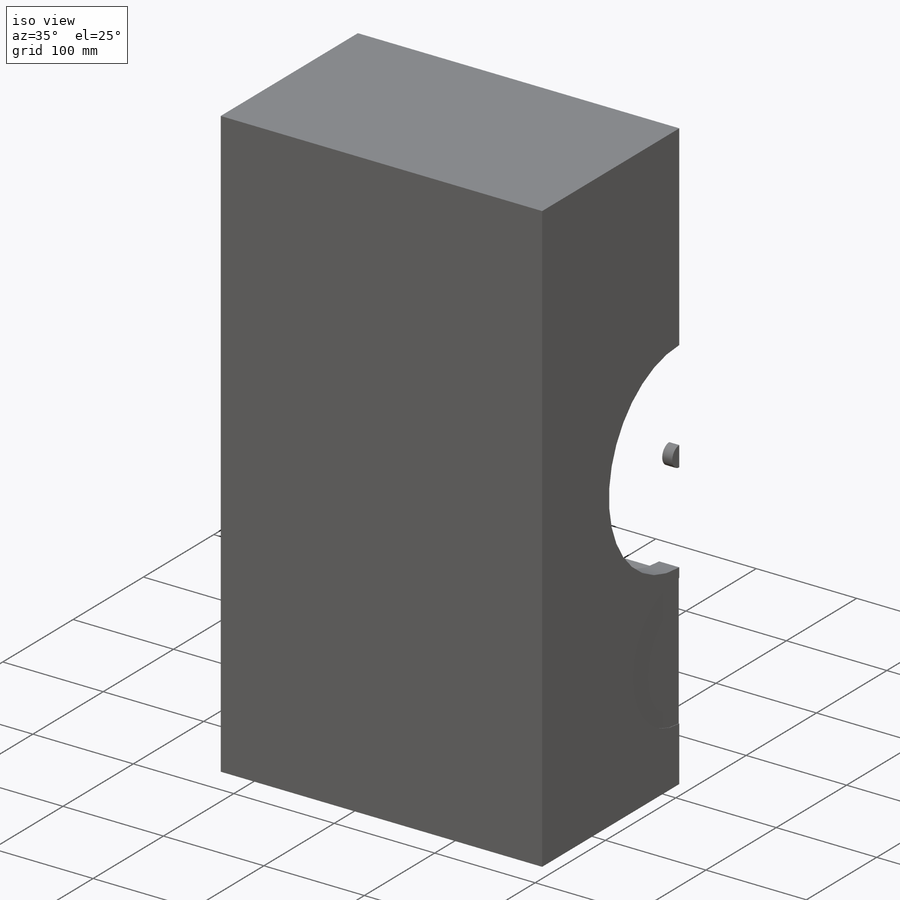
[diagram: iso view]
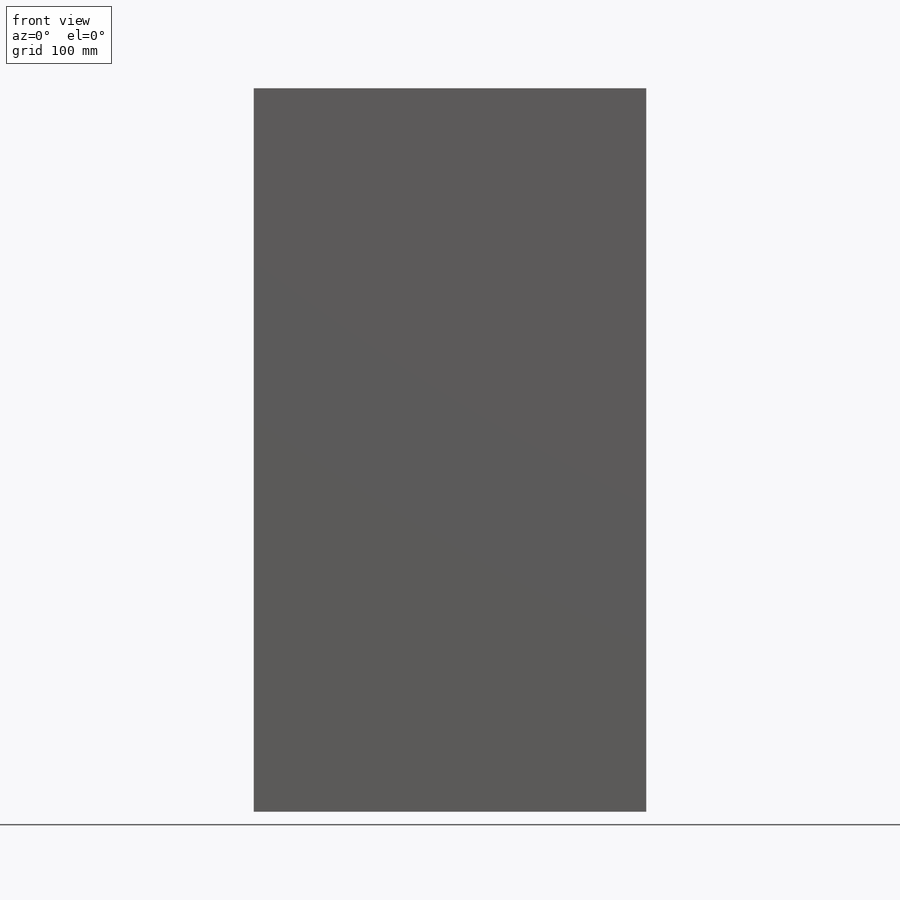
[diagram: front view]
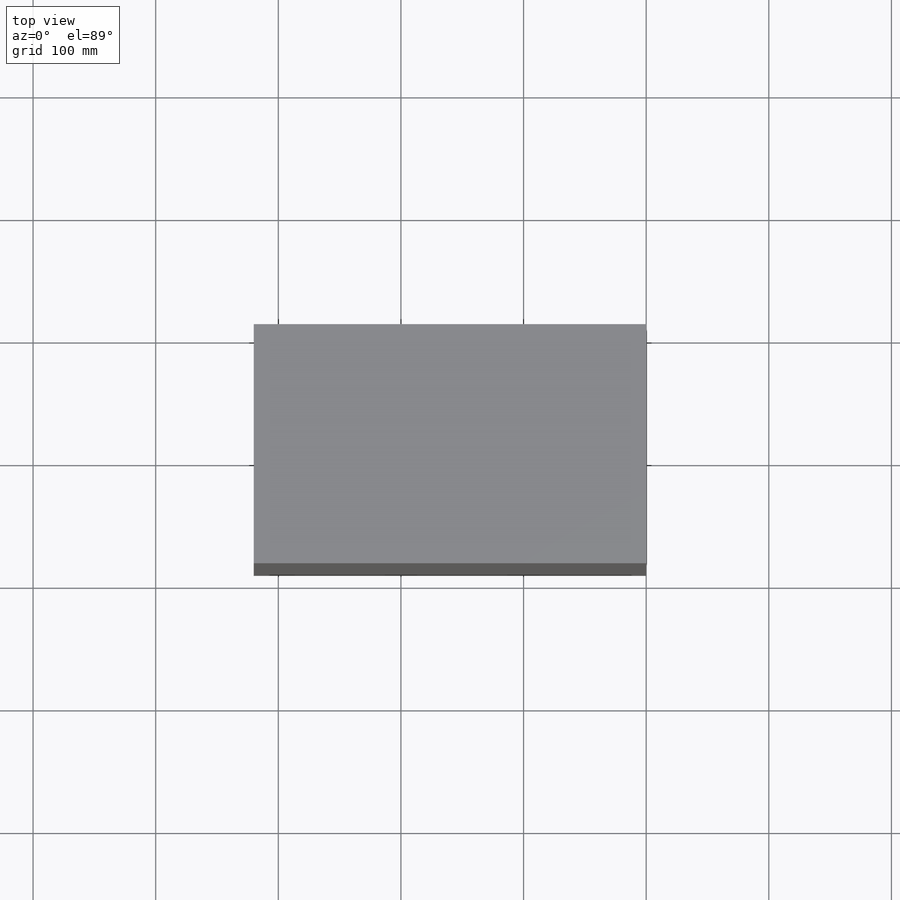
[diagram: top view]
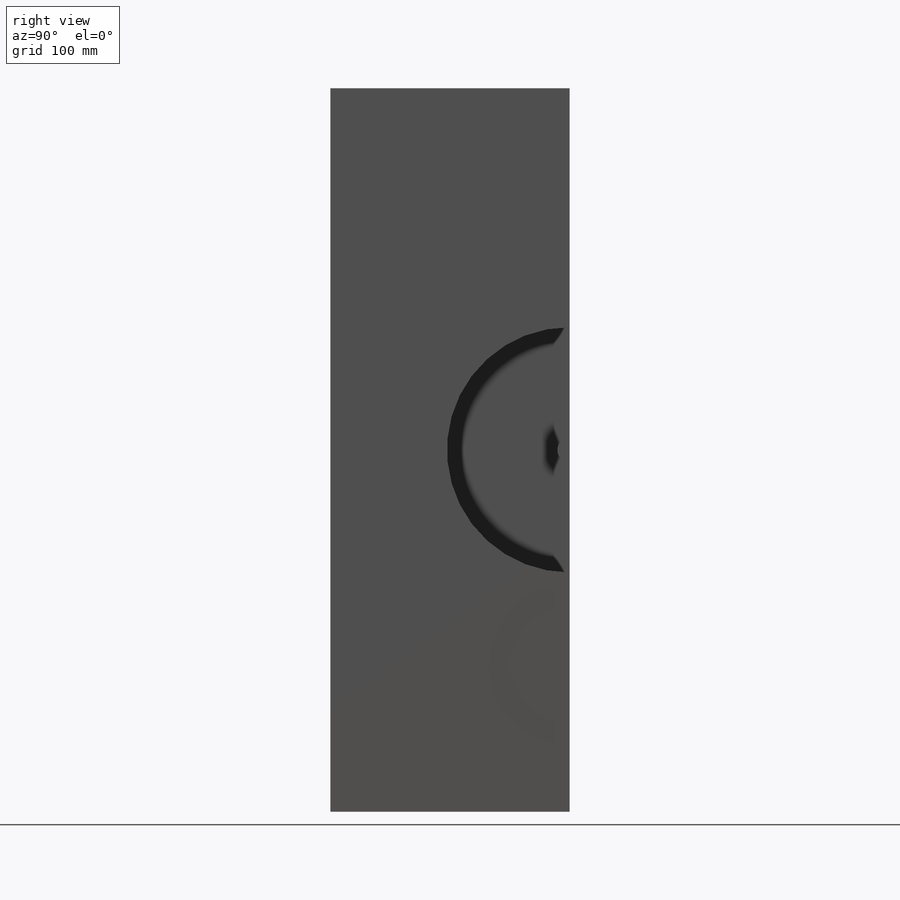
[diagram: right view]
SOLIDWORKS PART (.sldprt)
format: sldprt  version: not decoded by parser v0  size: 253,952 bytes
history: native  units: mm
features: sketch x10, extrude x7, plane x5, cut_extrude x3, material x1 + 1 further entry (+9 scaffold rows collapsed)
feature tree (36):
  scaffold x9  (default folders/planes/origin — collapsed)
  material  "Matériau <non spécifié>"
  "Annotations"  RD1=195mm
  plane  "Plan de face"
  plane  "Plan de dessus"
  plane  "Plan de droite"
  sketch  "Esquisse1"  dims[D1=550.0mm D2=280.0mm D3=20.0mm]
  extrude  "Boss.-Extru.1"  Depth=390mm
  sketch  "Esquisse2"  dims[D1=550.0mm]
  extrude  "Boss.-Extru.2"  Depth=20mm
  sketch  "Esquisse3"
  extrude  "Boss.-Extru.3"  Depth=20mm
  sketch  "Esquisse4"  dims[D1=200.0mm]
  cut_extrude  "Enlèv. mat.-Extru.1"  Depth=20mm
  sketch  "Esquisse5"  dims[D2=131.1mm D1=120.0mm]
  cut_extrude  "Enlèv. mat.-Extru.2"  Depth=20mm
  sketch  "Esquisse7"  dims[c1.D1=~34.584468mm c1.D2=57.0mm c2.D1=3.0mm c2.D2=0.0mm]
  extrude  "Boss.-Extru.4"  Depth=140mm
  sketch  "Esquisse8"  dims[D1=20.0mm D2=20.0mm]
  extrude  "Boss.-Extru.5"  Depth=10mm
  plane  "Plan1"  Offset=0.5mm
  sketch  "Esquisse9"  dims[c1.D1=~45.634427mm c1.D2=~13.336567mm c2.D1=0.0mm]
  extrude  "Boss.-Extru.6"  Depth=1mm
  plane  "Plan2"  Offset=0.5mm
  sketch  "Esquisse10"  dims[D1=0.0mm]
  extrude  "Boss.-Extru.7"  Depth=1mm
  sketch  "Esquisse11"
  cut_extrude  "Enlèv. mat.-Extru.3"  [1 undecoded]
decode coverage: 17 of 20 modeling features carry decoded parameters; 1 rows unclassified (native names shown)
note: ~ marks probable driven/reference dimensions
note: 1 parameter value undecoded
note: suppression state not decoded; provenance and decode notes live in map.json
